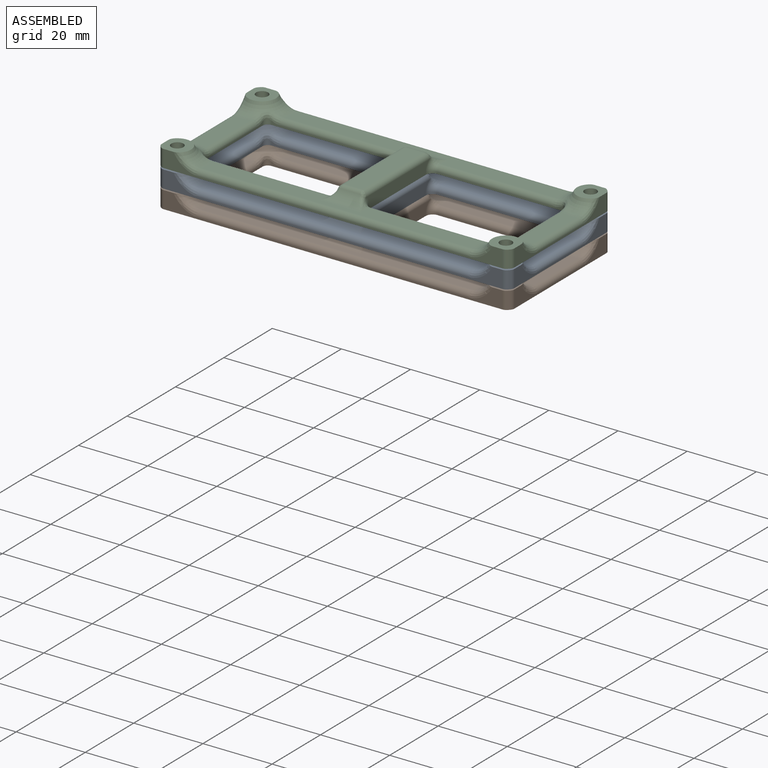
[diagram: assembled view]
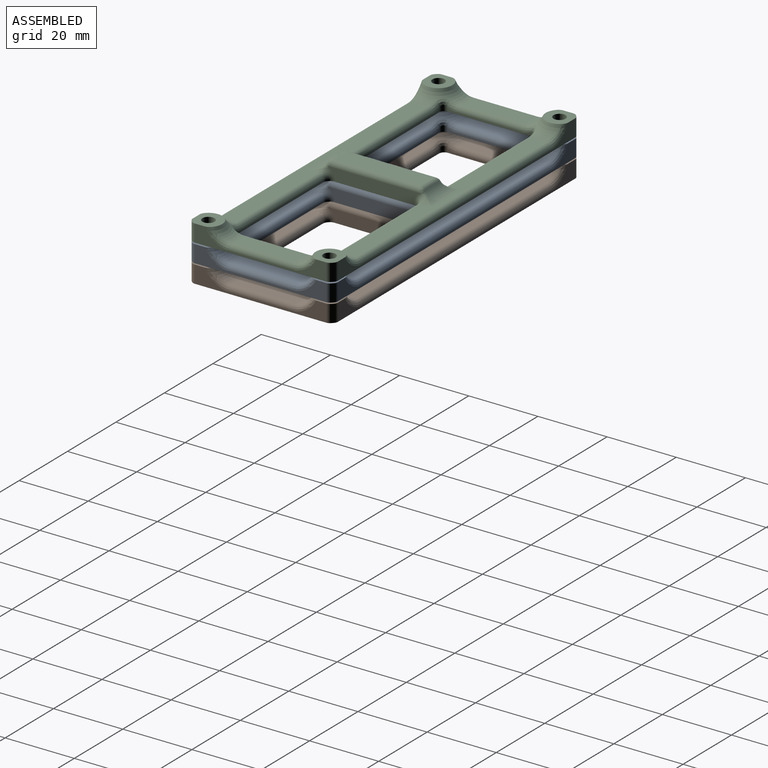
[diagram: assembled view, second angle]
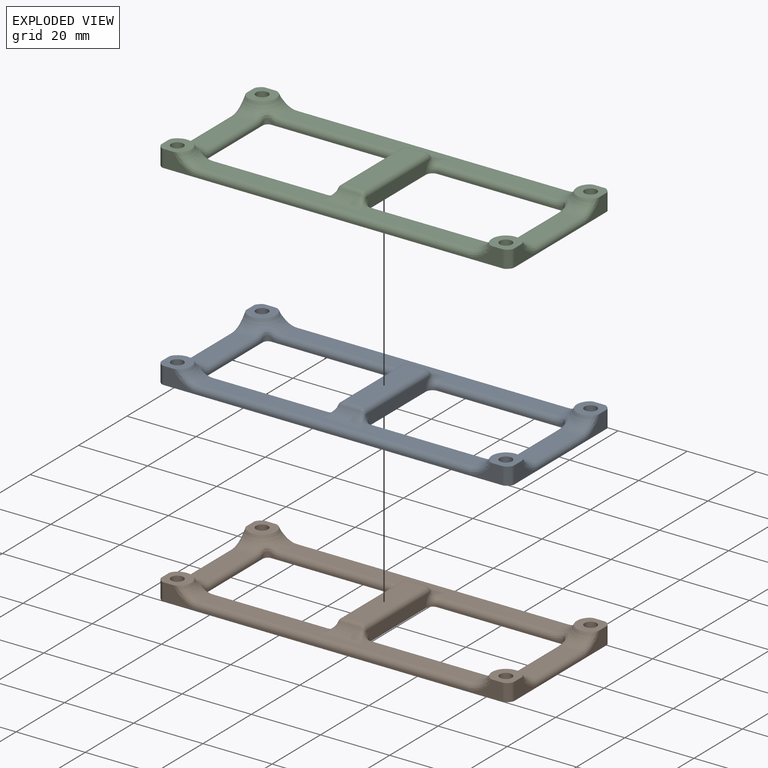
[diagram: exploded view]
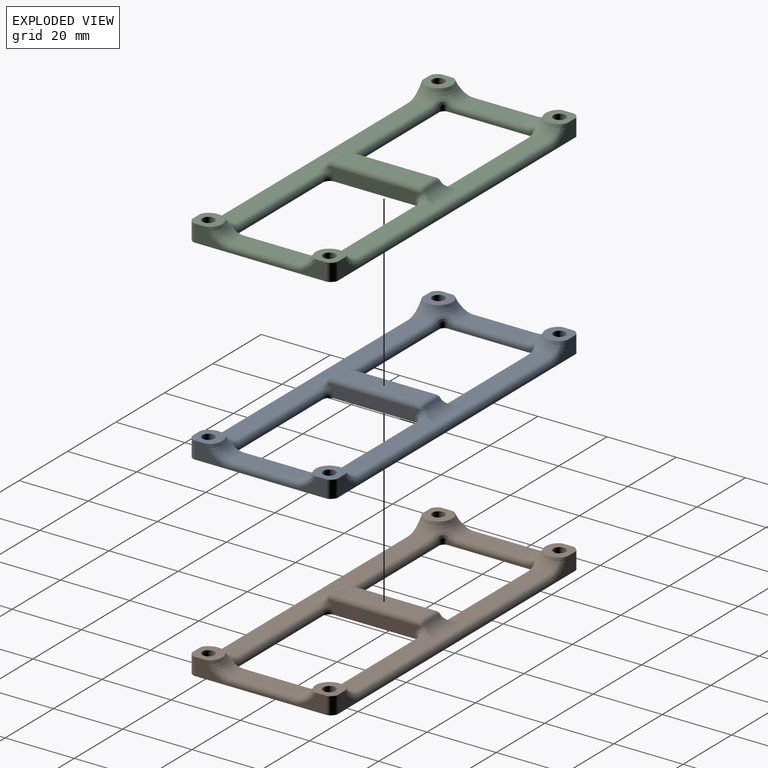
[diagram: exploded view, second angle]
ASSEMBLY  parts=3 mates=2
PART A: 114 faces, bbox 115.1x55.1x7.1 mm
  f0: plane 78.58x4.5mm, normal (0,0,1), area 314.4mm2, adj f30,f32,f33,f36,f47,f68,f89,f90
  f1: plane 18.58x4.5mm, normal (0,0,1), area 81.2mm2, adj f33,f34,f52,f59
  f2: plane 78.58x4.5mm, normal (0,0,1), area 314.4mm2, adj f31,f34,f35,f40,f55,f62,f82,f97
  f3: plane 18.58x4.5mm, normal (0,0,1), area 81.2mm2, adj f32,f35,f44,f65
  f4: plane 98x5mm, normal (0,1,0), area 93.4mm2, adj f24,f25,f26,f61,f62,f63,f74,f77
  f5: cylinder r=4mm len=5mm, axis (0,0,-1), area 5.7mm2, adj f24,f26,f76,f77
  f6: plane 38x5mm, normal (-1,0,0), area 63.4mm2, adj f24,f26,f27,f58,f59,f60,f76,f79
  f7: cylinder r=4mm len=5mm, axis (0,0,-1), area 5.7mm2, adj f24,f27,f78,f79
  f8: plane 98x5mm, normal (0,-1,0), area 93.4mm2, adj f24,f27,f28,f67,f68,f69,f78,f80
  f9: cylinder r=4mm len=5mm, axis (0,0,-1), area 5.7mm2, adj f24,f28,f80,f81
  f10: plane 38x5mm, normal (1,0,0), area 63.4mm2, adj f24,f25,f28,f64,f65,f66,f75,f81
  f11: plane 26.39x3.5mm, normal (1,0,0), area 83.5mm2, adj f24,f72,f84,f85,f86,f87
  f12: plane 36x1.02mm, normal (0,-1,0), area 18.5mm2, adj f24,f40,f42,f43,f85
  f13: plane 24.01x1.02mm, normal (-1,0,0), area 12.9mm2, adj f24,f38,f41,f42,f44,f46
  f14: plane 36x1.02mm, normal (0,-1,0), area 18.5mm2, adj f24,f53,f55,f57,f94
  f15: plane 26.39x3.5mm, normal (-1,0,0), area 83.5mm2, adj f24,f71,f92,f93,f94,f95
  f16: plane 36x1.02mm, normal (0,1,0), area 18.5mm2, adj f24,f47,f48,f49,f93
  f17: cylinder r=1.75mm len=5mm, axis (0,0,-1), area 55mm2, adj f24,f27
  f18: cylinder r=1.75mm len=5mm, axis (0,0,-1), area 55mm2, adj f24,f28
  f19: cylinder r=1.75mm len=5mm, axis (0,0,-1), area 55mm2, adj f24,f25
  f20: cylinder r=4mm len=5mm, axis (0,0,-1), area 5.7mm2, adj f24,f25,f74,f75
  f21: plane 36x1.02mm, normal (0,1,0), area 18.5mm2, adj f24,f36,f37,f38,f86
  f22: plane 24.01x1.02mm, normal (1,0,0), area 12.9mm2, adj f24,f48,f51,f52,f53,f54
  f23: cylinder r=1.75mm len=5mm, axis (0,0,-1), area 55mm2, adj f24,f26
  f24: plane 102x42mm, normal (0,0,-1), area 2113.8mm2, adj f4,f5,f6,f7,f8,f9,f10,f11
  f25: plane 7.59x7.59mm, normal (0,0,1), area 37.9mm2, adj f4,f10,f19,f20,f35,f61,f66,f74
  f26: plane 7.59x7.59mm, normal (0,0,1), area 37.9mm2, adj f4,f5,f6,f23,f34,f60,f63,f76
  f27: plane 7.59x7.59mm, normal (0,0,1), area 37.9mm2, adj f6,f7,f8,f17,f33,f58,f69,f78
  f28: plane 7.59x7.59mm, normal (0,0,1), area 37.9mm2, adj f8,f9,f10,f18,f32,f64,f67,f80
  f29: plane 25.21x5mm, normal (0,0,1), area 126.1mm2, adj f70,f71,f72,f73
  f30: cylinder r=5mm len=11.93mm, axis (1,0,0), area 41.7mm2, adj f0,f70,f102,f103,f104,f106,f107,f108
  f31: cylinder r=5mm len=11.93mm, axis (1,0,0), area 41.7mm2, adj f2,f73,f98,f99,f100,f110,f111,f112
  f32: torus R=8.58mm, axis (0,0,1), area 73.4mm2, adj f0,f3,f28,f37,f39,f41,f64,f67
  f33: torus R=8.58mm, axis (0,0,1), area 73.4mm2, adj f0,f1,f27,f49,f50,f51,f58,f69
  f34: torus R=8.58mm, axis (0,0,1), area 73.4mm2, adj f1,f2,f26,f54,f56,f57,f60,f63
  f35: torus R=8.58mm, axis (0,0,1), area 73.4mm2, adj f2,f3,f25,f43,f45,f46,f61,f66
  f36: cylinder r=1.5mm len=33.33mm, axis (1,0,0), area 78.5mm2, adj f0,f21,f37,f87,f88
  f37: bspline ~5.12x2.23mm, area 5.5mm2, adj f21,f32,f36,f39
  f38: cylinder r=1.5mm len=1.73mm, axis (0,0,-1), area 3.4mm2, adj f13,f21,f24,f39
  f39: bspline ~3.85x3.81mm, area 6.2mm2, adj f32,f37,f38,f41
  f40: cylinder r=1.5mm len=33.33mm, axis (-1,0,0), area 78.5mm2, adj f2,f12,f43,f83,f84
  f41: bspline ~5.12x2.23mm, area 5.5mm2, adj f13,f32,f39,f44
  f42: cylinder r=1.5mm len=1.73mm, axis (0,0,1), area 3.4mm2, adj f12,f13,f24,f45
  f43: bspline ~5.12x2.23mm, area 5.5mm2, adj f12,f35,f40,f45
  f44: cylinder r=1.5mm len=18.58mm, axis (0,1,0), area 43.8mm2, adj f3,f13,f41,f46
  f45: bspline ~3.85x3.81mm, area 6.2mm2, adj f35,f42,f43,f46
  f46: bspline ~5.12x2.23mm, area 5.5mm2, adj f13,f35,f44,f45
  f47: cylinder r=1.5mm len=33.33mm, axis (1,0,0), area 78.5mm2, adj f0,f16,f49,f91,f92
  f48: cylinder r=1.5mm len=1.73mm, axis (0,0,1), area 3.4mm2, adj f16,f22,f24,f50
  f49: bspline ~5.12x2.23mm, area 5.5mm2, adj f16,f33,f47,f50
  f50: bspline ~3.85x3.81mm, area 6.2mm2, adj f33,f48,f49,f51
  f51: bspline ~5.12x2.23mm, area 5.5mm2, adj f22,f33,f50,f52
  f52: cylinder r=1.5mm len=18.58mm, axis (0,-1,0), area 43.8mm2, adj f1,f22,f51,f54
  f53: cylinder r=1.5mm len=1.73mm, axis (0,0,-1), area 3.4mm2, adj f14,f22,f24,f56
  f54: bspline ~5.12x2.23mm, area 5.5mm2, adj f22,f34,f52,f56
  f55: cylinder r=1.5mm len=33.33mm, axis (-1,0,0), area 78.5mm2, adj f2,f14,f57,f95,f96
  f56: bspline ~3.85x3.81mm, area 6.2mm2, adj f34,f53,f54,f57
  f57: bspline ~5.12x2.23mm, area 5.5mm2, adj f14,f34,f55,f56
  f58: bspline ~8.69x5.27mm, area 14.3mm2, adj f6,f27,f33,f59
  f59: cylinder r=1.5mm len=18.31mm, axis (0,1,0), area 43.1mm2, adj f1,f6,f58,f60
  f60: bspline ~8.69x5.27mm, area 14.3mm2, adj f6,f26,f34,f59
  f61: bspline ~8.69x5.27mm, area 14.3mm2, adj f4,f25,f35,f62
  f62: cylinder r=1.5mm len=78.31mm, axis (1,0,0), area 184.5mm2, adj f2,f4,f61,f63
  f63: bspline ~8.69x5.27mm, area 14.3mm2, adj f4,f26,f34,f62
  f64: bspline ~8.69x5.27mm, area 14.3mm2, adj f10,f28,f32,f65
  f65: cylinder r=1.5mm len=18.31mm, axis (0,-1,0), area 43.1mm2, adj f3,f10,f64,f66
  f66: bspline ~8.69x5.27mm, area 14.3mm2, adj f10,f25,f35,f65
  f67: bspline ~8.69x5.27mm, area 14.3mm2, adj f8,f28,f32,f68
  f68: cylinder r=1.5mm len=78.31mm, axis (-1,0,0), area 184.5mm2, adj f0,f8,f67,f69
  f69: bspline ~8.69x5.27mm, area 14.3mm2, adj f8,f27,f33,f68
  f70: cylinder r=1.5mm len=5.84mm, axis (1,0,0), area 8.1mm2, adj f29,f30,f105,f109
  f71: cylinder r=1.5mm len=26.42mm, axis (0,1,0), area 61mm2, adj f15,f29,f91,f96,f100,f101,f104,f105
  f72: cylinder r=1.5mm len=26.42mm, axis (0,-1,0), area 61mm2, adj f11,f29,f83,f88,f108,f109,f112,f113
  f73: cylinder r=1.5mm len=5.84mm, axis (1,0,0), area 8.1mm2, adj f29,f31,f101,f113
  f74: cylinder r=1.5mm len=5mm, axis (0,0,-1), area 4.8mm2, adj f4,f20,f24,f25
  f75: cylinder r=1.5mm len=5mm, axis (0,0,-1), area 4.8mm2, adj f10,f20,f24,f25
  f76: cylinder r=1.5mm len=5mm, axis (0,0,-1), area 4.8mm2, adj f5,f6,f24,f26
  f77: cylinder r=1.5mm len=5mm, axis (0,0,-1), area 4.8mm2, adj f4,f5,f24,f26
  f78: cylinder r=1.5mm len=5mm, axis (0,0,-1), area 4.8mm2, adj f7,f8,f24,f27
  f79: cylinder r=1.5mm len=5mm, axis (0,0,-1), area 4.8mm2, adj f6,f7,f24,f27
  f80: cylinder r=1.5mm len=5mm, axis (0,0,-1), area 4.8mm2, adj f8,f9,f24,f28
  f81: cylinder r=1.5mm len=5mm, axis (0,0,-1), area 4.8mm2, adj f9,f10,f24,f28
  f82: cylinder r=2mm len=3.08mm, axis (0,-1,0), area 2.4mm2, adj f2,f83,f110
  f83: bspline ~2.81x2.19mm, area 2mm2, adj f40,f72,f82,f84,f111
  f84: torus R=3.5mm, axis (1,0,0), area 7.2mm2, adj f11,f40,f83,f85
  f85: cylinder r=2mm len=2mm, axis (0,0,-1), area 1.6mm2, adj f11,f12,f24,f84
  f86: cylinder r=2mm len=2mm, axis (0,0,1), area 1.6mm2, adj f11,f21,f24,f87
  f87: torus R=3.5mm, axis (1,0,0), area 7.2mm2, adj f11,f36,f86,f88
  f88: bspline ~2.81x2.19mm, area 2mm2, adj f36,f72,f87,f89,f107
  f89: cylinder r=2mm len=3.08mm, axis (0,-1,0), area 2.4mm2, adj f0,f88,f106
  f90: cylinder r=2mm len=3.08mm, axis (0,1,0), area 2.4mm2, adj f0,f91,f102
  f91: bspline ~2.81x2.19mm, area 2mm2, adj f47,f71,f90,f92,f103
  f92: torus R=3.5mm, axis (1,0,0), area 7.2mm2, adj f15,f47,f91,f93
  f93: cylinder r=2mm len=2mm, axis (0,0,-1), area 1.6mm2, adj f15,f16,f24,f92
  f94: cylinder r=2mm len=2mm, axis (0,0,1), area 1.6mm2, adj f14,f15,f24,f95
  f95: torus R=3.5mm, axis (1,0,0), area 7.2mm2, adj f15,f55,f94,f96
  f96: bspline ~2.81x2.19mm, area 2mm2, adj f55,f71,f95,f97,f99
  f97: cylinder r=2mm len=3.08mm, axis (0,1,0), area 2.4mm2, adj f2,f96,f98
  f98: bspline ~3.28x2.22mm, area 1mm2, adj f31,f97,f99
  f99: bspline ~2.65x2mm, area 2.7mm2, adj f31,f96,f98,f100
  f100: bspline ~1.66x1.28mm, area 0.8mm2, adj f31,f71,f99,f101
  f101: bspline ~1.35x1.35mm, area 0.7mm2, adj f71,f73,f100
  f102: bspline ~3.28x2.22mm, area 1mm2, adj f30,f90,f103
  f103: bspline ~2.62x1.99mm, area 2.7mm2, adj f30,f91,f102,f104
  f104: bspline ~1.55x1.24mm, area 0.8mm2, adj f30,f71,f103,f105
  f105: bspline ~1.35x1.35mm, area 0.7mm2, adj f70,f71,f104
  f106: bspline ~3.28x2.22mm, area 1mm2, adj f30,f89,f107
  f107: bspline ~2.65x2mm, area 2.7mm2, adj f30,f88,f106,f108
  f108: bspline ~1.66x1.28mm, area 0.8mm2, adj f30,f72,f107,f109
  f109: bspline ~1.35x1.35mm, area 0.7mm2, adj f70,f72,f108
  f110: bspline ~3.28x2.22mm, area 1mm2, adj f31,f82,f111
  f111: bspline ~2.62x1.99mm, area 2.7mm2, adj f31,f83,f110,f112
  f112: bspline ~1.66x1.28mm, area 0.8mm2, adj f31,f72,f111,f113
  f113: bspline ~1.35x1.35mm, area 0.7mm2, adj f72,f73,f112
PART B: same geometry as A
PART C: same geometry as A
PLACE A t=(-2.23,17.98,22.33)mm
PLACE B t=(-2.23,17.98,16.97)mm
PLACE C t=(-2.23,17.98,27.72)mm
MATE slider C.f9 <-> A.f9  axis (0,0,-1) through (45.27,0.48,27.72)mm
MATE slider B.f9 <-> A.f9  axis (0,0,-1) through (45.27,0.48,16.97)mm
